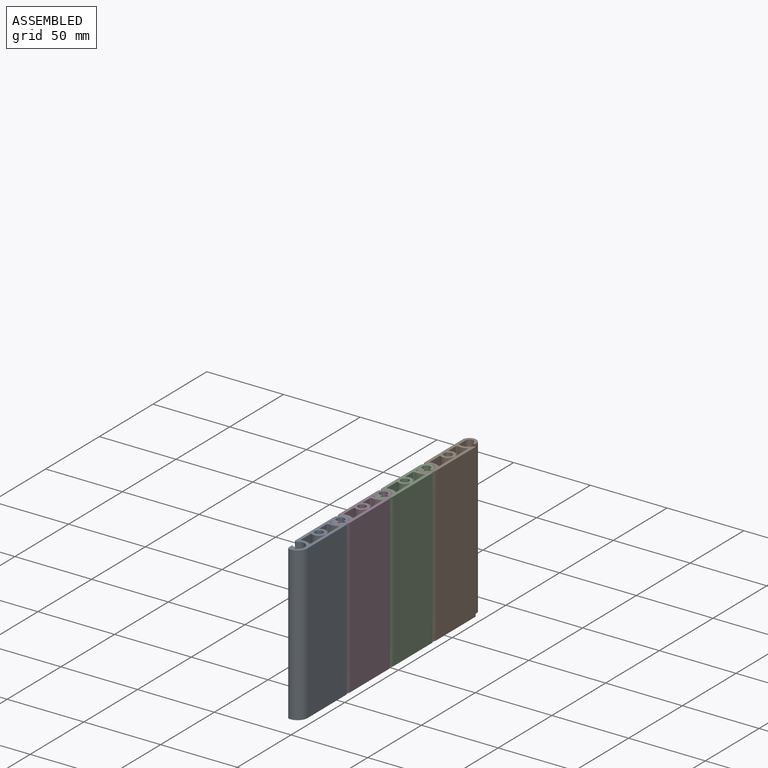
[diagram: assembled view]
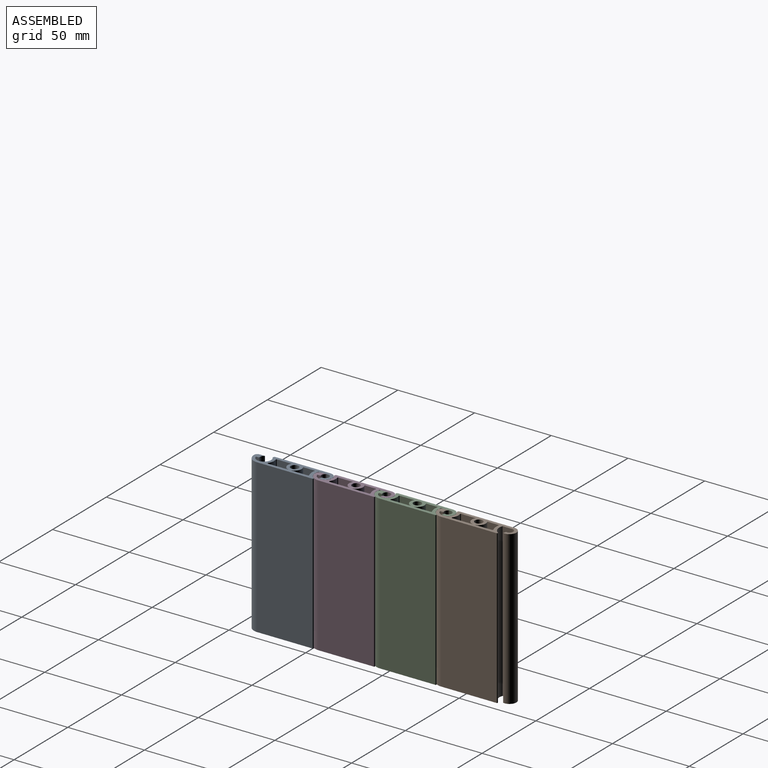
[diagram: assembled view, second angle]
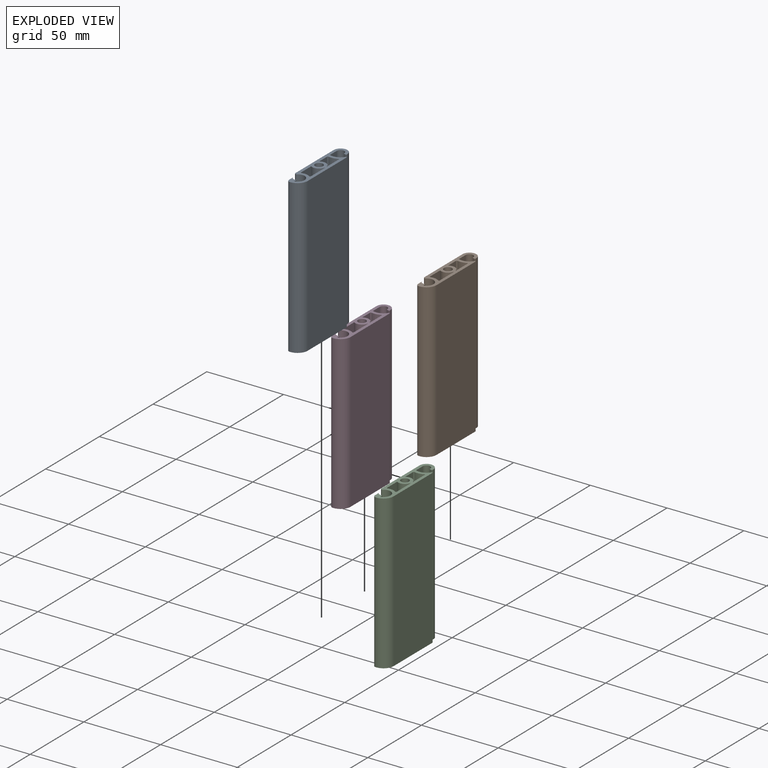
[diagram: exploded view]
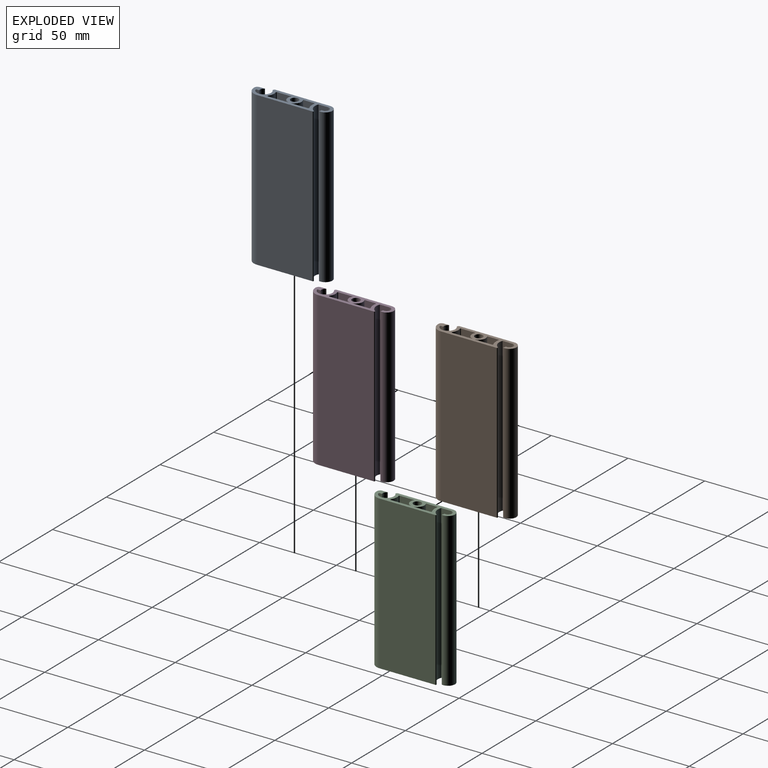
[diagram: exploded view, second angle]
ASSEMBLY  parts=4 mates=3
PART A: 34 faces, bbox 11.1x51.1x100 mm
  f0: cylinder r=2.6mm len=100mm, axis (0,0,1), area 1633.6mm2, adj f12,f33
  f1: cylinder r=4.5mm len=100mm, axis (0,0,1), area 871.1mm2, adj f12,f23,f31,f33
  f2: cylinder r=2.6mm len=100mm, axis (0,0,1), area 408.4mm2, adj f12,f13,f20,f33
  f3: cylinder r=0.5mm len=100mm, axis (0,0,-1), area 129.1mm2, adj f12,f15,f16,f33
  f4: cylinder r=0.5mm len=100mm, axis (0,0,-1), area 89.5mm2, adj f11,f12,f22,f33
  f5: cylinder r=0.5mm len=100mm, axis (0,0,-1), area 101.6mm2, adj f12,f21,f22,f33
  f6: cylinder r=6.6mm len=100mm, axis (0,0,-1), area 594.8mm2, adj f12,f28,f29,f33
  f7: cylinder r=4.6mm len=100mm, axis (0,0,-1), area 1654.9mm2, adj f12,f20,f24,f33
  f8: cylinder r=4.5mm len=100mm, axis (0,0,-1), area 1510.6mm2, adj f12,f19,f27,f33
  f9: cylinder r=2.5mm len=100mm, axis (0,0,-1), area 832.3mm2, adj f12,f17,f26,f33
  f10: plane 100x13.2mm, normal (-1,0,0), area 1320.3mm2, adj f12,f28,f31,f33
  f11: plane 100x7.28mm, normal (1,0,0), area 727.8mm2, adj f4,f12,f30,f33
  f12: plane 51.1x11.1mm, normal (0,0,-1), area 262.3mm2, adj f0,f1,f2,f3,f4,f5,f6,f7
  f13: plane 100x3.58mm, normal (-1,0,0), area 358.3mm2, adj f2,f12,f25,f33
  f14: cylinder r=6.6mm len=100mm, axis (0,0,-1), area 1094.2mm2, adj f12,f15,f25,f33
  f15: plane 100x36.18mm, normal (1,0,0), area 3617.5mm2, adj f3,f12,f14,f33
  f16: cylinder r=6.7mm len=100mm, axis (0,0,-1), area 933.4mm2, adj f3,f12,f17,f33
  f17: plane 100x6.22mm, normal (1,0,0), area 621.6mm2, adj f9,f12,f16,f33
  f18: plane 100x1.55mm, normal (-0.26,-0.97,0), area 160.3mm2, adj f12,f26,f27,f33
  f19: plane 100x35.63mm, normal (-1,0,0), area 3562.9mm2, adj f8,f12,f24,f33
  f20: plane 100x2.09mm, normal (1,0,0), area 209mm2, adj f2,f7,f12,f33
  f21: plane 100x10.76mm, normal (-1,0,0), area 1076.4mm2, adj f5,f12,f32,f33
  f22: cylinder r=8.7mm len=100mm, axis (0,0,-1), area 592.5mm2, adj f4,f5,f12,f33
  f23: plane 100x9.45mm, normal (1,0,0), area 944.6mm2, adj f1,f12,f29,f33
  f24: cylinder r=1mm len=100mm, axis (0,0,-1), area 224.6mm2, adj f7,f12,f19,f33
  f25: cylinder r=2mm len=100mm, axis (0,0,-1), area 296.7mm2, adj f12,f13,f14,f33
  f26: cylinder r=0.2mm len=100mm, axis (0,0,-1), area 29.9mm2, adj f9,f12,f18,f33
  f27: cylinder r=0.2mm len=100mm, axis (0,0,-1), area 32.3mm2, adj f8,f12,f18,f33
  f28: cylinder r=0.5mm len=100mm, axis (0,0,-1), area 109.3mm2, adj f6,f10,f12,f33
  f29: cylinder r=0.5mm len=100mm, axis (0,0,-1), area 92.8mm2, adj f6,f12,f23,f33
  f30: cylinder r=4.5mm len=100mm, axis (0,0,1), area 871.1mm2, adj f11,f12,f32,f33
  f31: plane 100x0.21mm, normal (0,-1,0), area 21.3mm2, adj f1,f10,f12,f33
  f32: plane 100x0.21mm, normal (0,1,0), area 21.3mm2, adj f12,f21,f30,f33
  f33: plane 51.1x11.1mm, normal (0,0,1), area 262.3mm2, adj f0,f1,f2,f3,f4,f5,f6,f7
PART B: same geometry as A
PART C: same geometry as A
PART D: same geometry as A
PLACE A t=(-7.87,7.36,121.8)mm
PLACE B t=(-7.87,127.36,121.8)mm
PLACE C t=(-7.87,87.36,121.8)mm
PLACE D t=(-7.87,47.36,121.8)mm fixed
MATE revolute D.f2 <-> A.f8  axis (0,0,1) through (-7.87,7.36,221.8)mm
MATE fastened B.f2 <-> C.f8  axis (0,0,1) through (-7.87,87.36,221.8)mm
MATE revolute C.f2 <-> D.f8  axis (0,0,1) through (-7.87,47.36,221.8)mm
